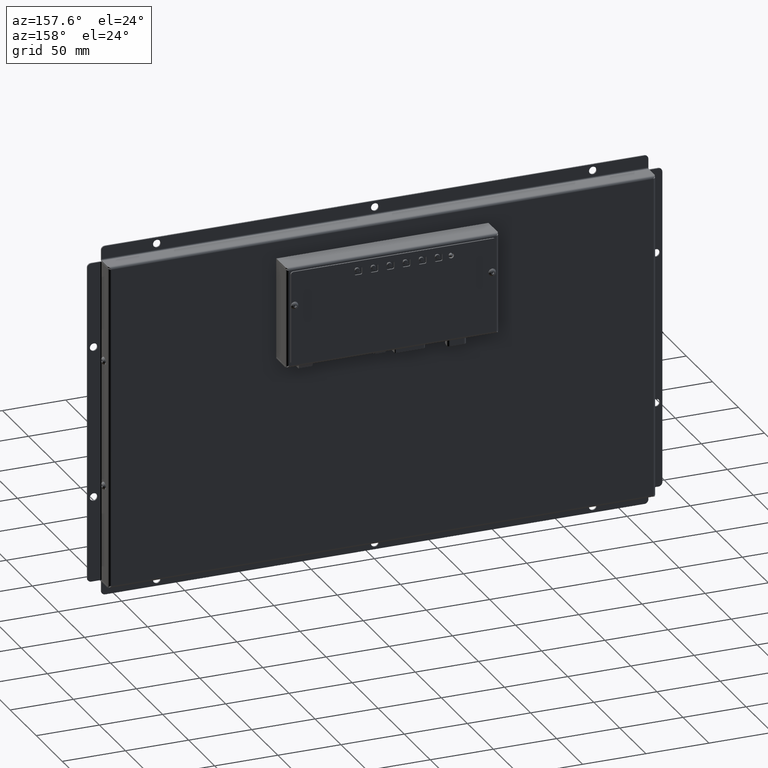
[diagram: clean part render]
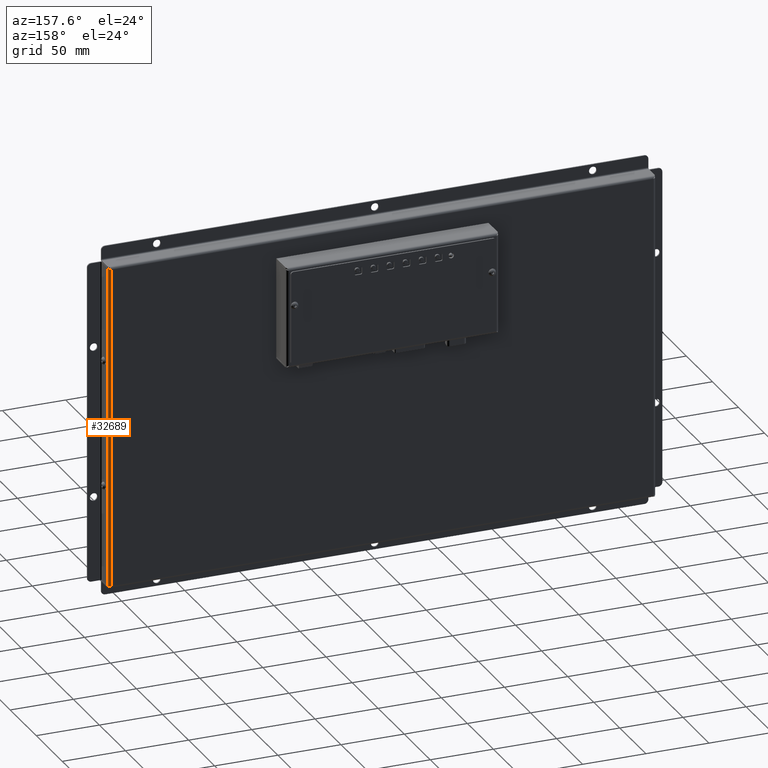
[diagram: same view with one face highlighted and labeled with its STEP entity id]
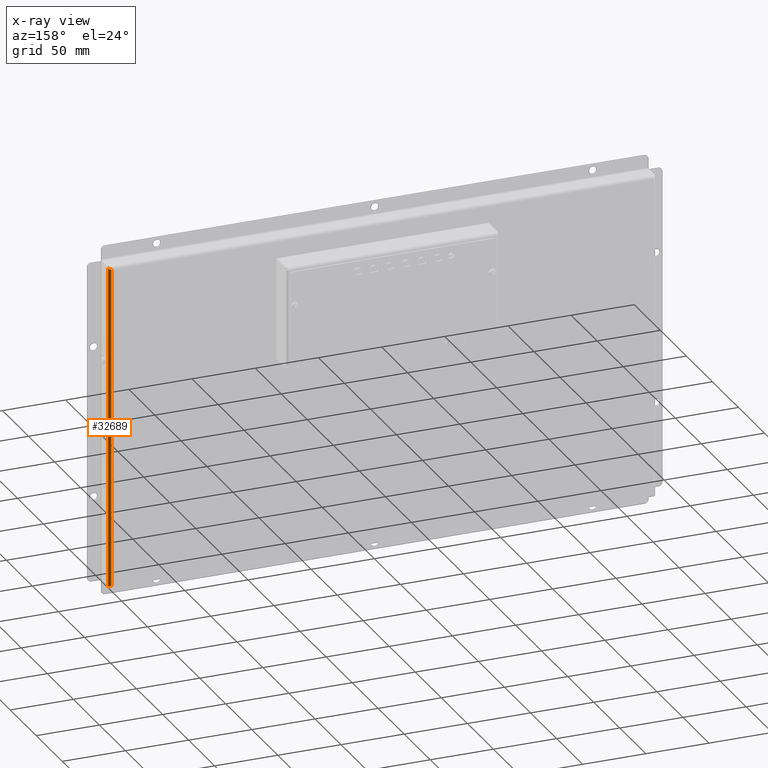
[diagram: x-ray of the same camera — body ghosted, the highlighted face saturated]
A machine part, auxiliary view. The second image highlights one B-rep face of the part: STEP entity #32689.
The next image is the same camera in x-ray: the body ghosted, the highlighted face saturated — about 0% of this face is hidden behind the body in this view.
In plain terms, the highlighted cylindrical surface (edge-blend (fillet) strip) has radius 2 mm, axis along (-0, -0, -1).
Its self-contained STEP definition (entity closure, byte-faithful):
#395=B_SPLINE_CURVE_WITH_KNOTS('',3,(#48376,#48377,#48378,#48379),
 .UNSPECIFIED.,.F.,.F.,(4,4),(-1.,-0.763258696678561),.UNSPECIFIED.);
#397=B_SPLINE_CURVE_WITH_KNOTS('',3,(#48429,#48430,#48431,#48432,#48433,
#48434,#48435),.UNSPECIFIED.,.F.,.F.,(4,3,4),(-0.763258696678561,-0.327110870012876,
0.),.UNSPECIFIED.);
#399=B_SPLINE_CURVE_WITH_KNOTS('',3,(#48470,#48471,#48472,#48473,#48474,
#48475,#48476),.UNSPECIFIED.,.F.,.F.,(4,3,4),(-0.763258696678557,-0.436147826683842,
0.),.UNSPECIFIED.);
#400=B_SPLINE_CURVE_WITH_KNOTS('',3,(#48519,#48520,#48521,#48522),
 .UNSPECIFIED.,.F.,.F.,(4,4),(-1.,-0.763258696678557),.UNSPECIFIED.);
#1091=CYLINDRICAL_SURFACE('',#35148,2.00000000000004);
#3059=FACE_OUTER_BOUND('',#4943,.T.);
#4943=EDGE_LOOP('',(#21784,#21785,#21786,#21787,#21788,#21789));
#7129=LINE('',#47932,#10225);
#7184=LINE('',#48524,#10280);
#10225=VECTOR('',#38744,10.);
#10280=VECTOR('',#38881,10.);
#13344=VERTEX_POINT('',#47929);
#13345=VERTEX_POINT('',#47931);
#13370=VERTEX_POINT('',#48033);
#13378=VERTEX_POINT('',#48242);
#13380=VERTEX_POINT('',#48359);
#13381=VERTEX_POINT('',#48456);
#16596=EDGE_CURVE('',#13344,#13345,#7129,.T.);
#16673=EDGE_CURVE('',#13345,#13380,#395,.T.);
#16677=EDGE_CURVE('',#13380,#13378,#397,.T.);
#16680=EDGE_CURVE('',#13381,#13370,#399,.T.);
#16682=EDGE_CURVE('',#13344,#13381,#400,.T.);
#16683=EDGE_CURVE('',#13378,#13370,#7184,.T.);
#21784=ORIENTED_EDGE('',*,*,#16596,.F.);
#21785=ORIENTED_EDGE('',*,*,#16682,.T.);
#21786=ORIENTED_EDGE('',*,*,#16680,.T.);
#21787=ORIENTED_EDGE('',*,*,#16683,.F.);
#21788=ORIENTED_EDGE('',*,*,#16677,.F.);
#21789=ORIENTED_EDGE('',*,*,#16673,.F.);
#32689=ADVANCED_FACE('',(#3059),#1091,.T.);
#35148=AXIS2_PLACEMENT_3D('',#48523,#38879,#38880);
#38744=DIRECTION('',(-1.65089725680722E-16,-1.,5.94722400531351E-31));
#38879=DIRECTION('center_axis',(1.39267490348902E-16,1.,0.));
#38880=DIRECTION('ref_axis',(0.,0.,-1.));
#38881=DIRECTION('',(0.,1.,0.));
#47929=CARTESIAN_POINT('',(-216.45,127.45,2.00000000000002));
#47931=CARTESIAN_POINT('',(-216.45,-127.45,2.00000000000002));
#47932=CARTESIAN_POINT('',(-216.45,-6.01802429409296E-14,2.00000000000006));
#48033=CARTESIAN_POINT('',(-214.45,126.55,0.));
#48242=CARTESIAN_POINT('',(-214.45,-126.55,0.));
#48359=CARTESIAN_POINT('',(-216.313297267953,-127.236932826998,1.27327908298797));
#48376=CARTESIAN_POINT('Ctrl Pts',(-216.45,-127.45,2.00000000000002));
#48377=CARTESIAN_POINT('Ctrl Pts',(-216.45,-127.378977609005,1.75208508689458));
#48378=CARTESIAN_POINT('Ctrl Pts',(-216.402177244262,-127.307955218009,
1.50393726846782));
#48379=CARTESIAN_POINT('Ctrl Pts',(-216.312198719637,-127.236932827012,
1.27261268534063));
#48429=CARTESIAN_POINT('Ctrl Pts',(-216.313297267955,-127.236932827011,
1.27327908298316));
#48430=CARTESIAN_POINT('Ctrl Pts',(-216.147338578898,-127.106088479011,
0.84776446702548));
#48431=CARTESIAN_POINT('Ctrl Pts',(-215.830183491866,-126.975244131011,
0.483087175164702));
#48432=CARTESIAN_POINT('Ctrl Pts',(-215.433111320031,-126.844399783012,
0.258362880689952));
#48433=CARTESIAN_POINT('Ctrl Pts',(-215.135307191142,-126.746266522009,
0.0898196598268756));
#48434=CARTESIAN_POINT('Ctrl Pts',(-214.792549702047,-126.648133261006,
-7.15052629573433E-15));
#48435=CARTESIAN_POINT('Ctrl Pts',(-214.45,-126.55,-8.32667268468867E-15));
#48456=CARTESIAN_POINT('',(-216.313297267953,127.236932826998,1.27327908298794));
#48470=CARTESIAN_POINT('Ctrl Pts',(-216.313297267955,127.236932827011,1.27327908298316));
#48471=CARTESIAN_POINT('Ctrl Pts',(-216.188828251164,127.138799566012,0.954143121019142));
#48472=CARTESIAN_POINT('Ctrl Pts',(-215.980603369404,127.040666305014,0.667450487310145));
#48473=CARTESIAN_POINT('Ctrl Pts',(-215.715370063123,126.942533044017,0.451243619453567));
#48474=CARTESIAN_POINT('Ctrl Pts',(-215.361725654728,126.811688696012,0.162967795628786));
#48475=CARTESIAN_POINT('Ctrl Pts',(-214.906732936062,126.680844348008,1.27189822013538E-15));
#48476=CARTESIAN_POINT('Ctrl Pts',(-214.45,126.55,-8.46545056276682E-15));
#48519=CARTESIAN_POINT('Ctrl Pts',(-216.45,127.45,2.00000000000002));
#48520=CARTESIAN_POINT('Ctrl Pts',(-216.45,127.378977609005,1.75208508689458));
#48521=CARTESIAN_POINT('Ctrl Pts',(-216.402177244262,127.307955218009,1.50393726846783));
#48522=CARTESIAN_POINT('Ctrl Pts',(-216.312198719637,127.236932827013,1.27261268534064));
#48523=CARTESIAN_POINT('Origin',(-214.45,-7.105427357601E-14,2.00000000000004));
#48524=CARTESIAN_POINT('',(-214.45,-63.275,0.));